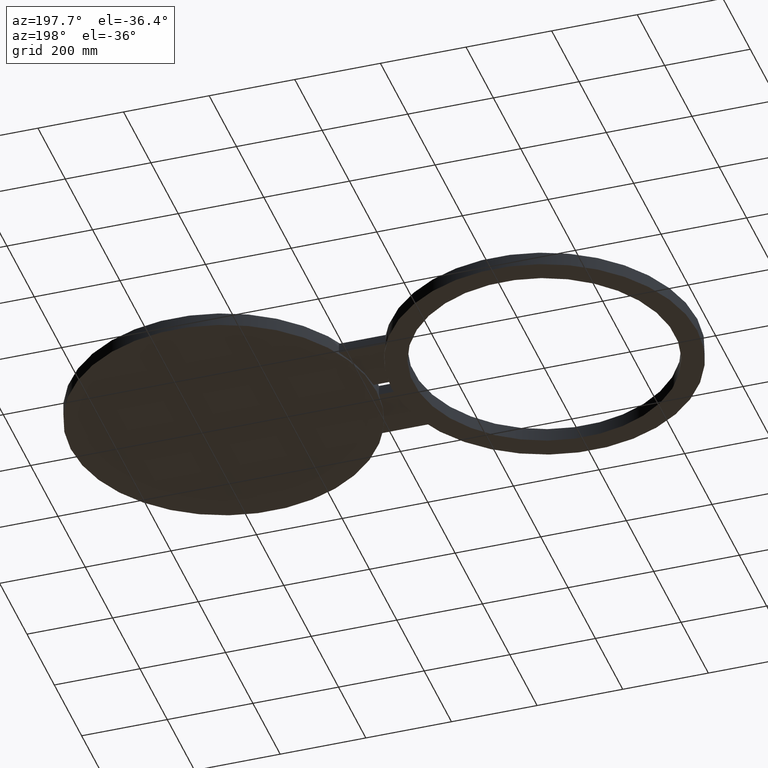
[diagram: clean part render]
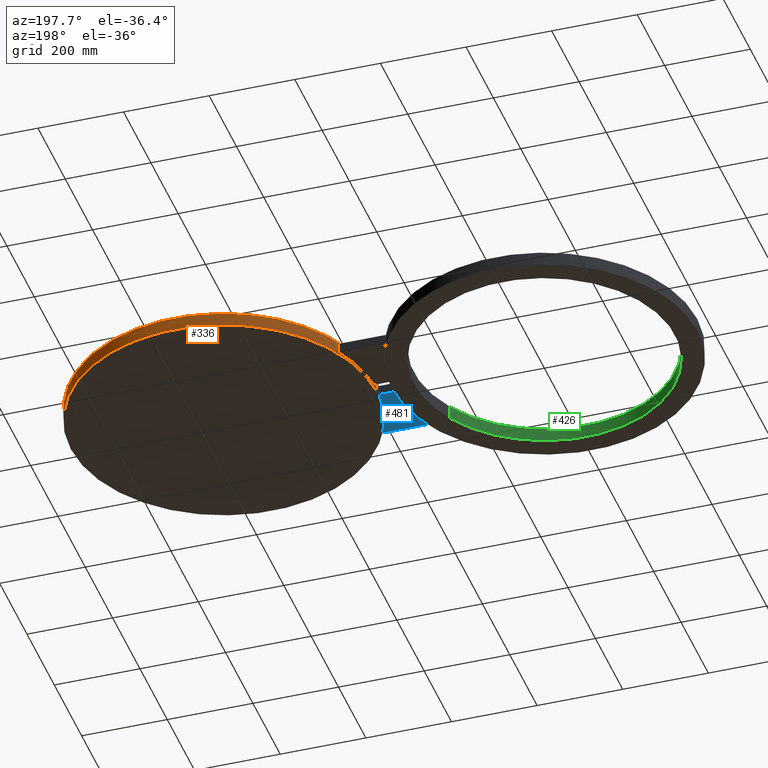
[diagram: same view with three faces highlighted in distinct colors, each labeled with its STEP entity id]
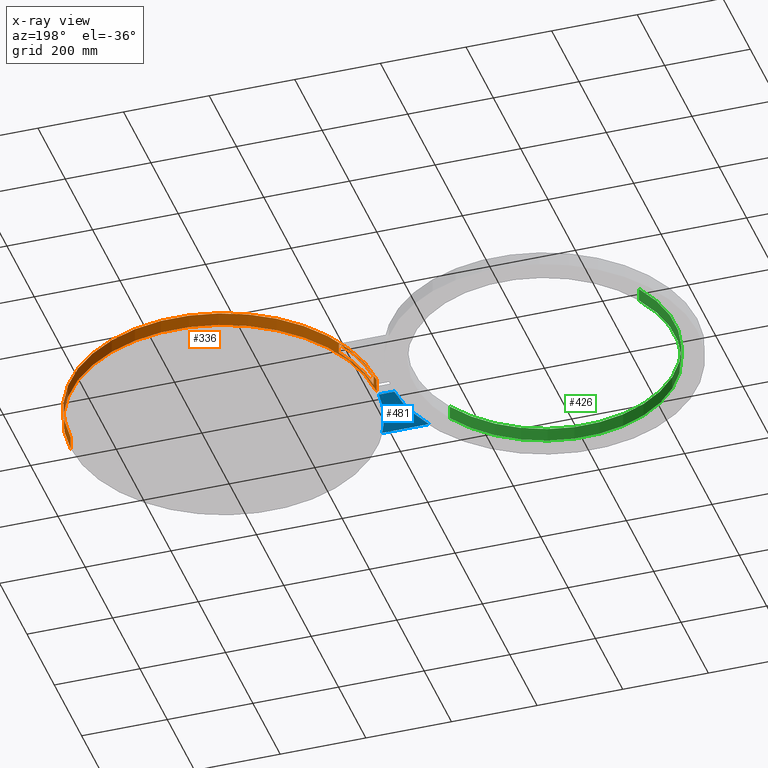
[diagram: x-ray of the same camera — body ghosted, the three highlighted faces saturated]
A machine part, auxiliary view with three faces highlighted in distinct colors.
The next image is the same camera in x-ray (body ghosted, the three faces saturated) — at least one of them is partly hidden behind the body in this view.
Their STEP definitions:

[orange] entity #336 — the highlighted cylindrical surface (partial cylindrical patch) has radius 357.124 mm, axis along (0, 0, 1).
#38=AXIS2_PLACEMENT_3D('Cylinder Axis2P3D',#35,#36,#37) ;
#277=AXIS2_PLACEMENT_3D('Circle Axis2P3D',#275,#276,$) ;
#294=AXIS2_PLACEMENT_3D('Circle Axis2P3D',#292,#293,$) ;
#304=AXIS2_PLACEMENT_3D('Circle Axis2P3D',#302,#303,$) ;
#320=AXIS2_PLACEMENT_3D('Circle Axis2P3D',#318,#319,$) ;
#35=CARTESIAN_POINT('Axis2P3D Location',(29.5000000001,3.6127080575E-015,-1.39870617276E-016)) ;
#40=CARTESIAN_POINT('Line Origine',(15.4400000001,5.33456145711E-015,-1.39870617276E-016)) ;
#44=CARTESIAN_POINT('Vertex',(15.4400000001,5.33456145711E-015,-0.625000000003)) ;
#46=CARTESIAN_POINT('Vertex',(15.4400000001,5.33456145711E-015,0.625000000002)) ;
#53=CARTESIAN_POINT('Vertex',(43.5600000002,1.69001258283E-016,-0.625000000003)) ;
#56=CARTESIAN_POINT('Line Origine',(43.5600000002,1.69001258283E-016,-1.39870617276E-016)) ;
#60=CARTESIAN_POINT('Vertex',(43.5600000002,1.69001258283E-016,0.625000000002)) ;
#221=CARTESIAN_POINT('Line Origine',(16.905513111,6.25000000002,6.99353086378E-017)) ;
#225=CARTESIAN_POINT('Vertex',(16.905513111,6.25000000003,-0.468750000002)) ;
#227=CARTESIAN_POINT('Vertex',(16.905513111,6.25000000003,0.468750000002)) ;
#267=CARTESIAN_POINT('Vertex',(15.4600178063,0.750000000003,-0.468750000002)) ;
#275=CARTESIAN_POINT('Axis2P3D Location',(29.5000000001,0.,-0.468750000002)) ;
#292=CARTESIAN_POINT('Axis2P3D Location',(29.5000000001,3.6127080575E-015,0.625000000002)) ;
#302=CARTESIAN_POINT('Axis2P3D Location',(29.5000000001,3.6127080575E-015,-0.625000000003)) ;
#318=CARTESIAN_POINT('Axis2P3D Location',(29.5000000001,3.6127080575E-015,0.468750000002)) ;
#322=CARTESIAN_POINT('Vertex',(15.4600178063,0.750000000003,0.468750000002)) ;
#325=CARTESIAN_POINT('Line Origine',(15.4600178063,0.750000000003,-1.39870617276E-016)) ;
#36=DIRECTION('Axis2P3D Direction',(0.,0.,0.0393700787402)) ;
#37=DIRECTION('Axis2P3D XDirection',(0.0393700787402,-9.64288818226E-018,0.)) ;
#41=DIRECTION('Vector Direction',(0.,0.,0.0393700787402)) ;
#57=DIRECTION('Vector Direction',(0.,0.,0.0393700787402)) ;
#222=DIRECTION('Vector Direction',(0.,0.,0.0393700787402)) ;
#276=DIRECTION('Axis2P3D Direction',(0.,0.,0.0393700787402)) ;
#293=DIRECTION('Axis2P3D Direction',(0.,0.,0.0393700787402)) ;
#303=DIRECTION('Axis2P3D Direction',(0.,0.,0.0393700787402)) ;
#319=DIRECTION('Axis2P3D Direction',(0.,0.,0.0393700787402)) ;
#326=DIRECTION('Vector Direction',(0.,0.,0.0393700787402)) ;
#42=VECTOR('Line Direction',#41,0.0393700787402) ;
#58=VECTOR('Line Direction',#57,0.0393700787402) ;
#223=VECTOR('Line Direction',#222,0.0393700787402) ;
#327=VECTOR('Line Direction',#326,0.0393700787402) ;
#313=ORIENTED_EDGE('',*,*,#62,.F.) ;
#314=ORIENTED_EDGE('',*,*,#306,.T.) ;
#315=ORIENTED_EDGE('',*,*,#48,.T.) ;
#316=ORIENTED_EDGE('',*,*,#296,.F.) ;
#331=ORIENTED_EDGE('',*,*,#324,.T.) ;
#332=ORIENTED_EDGE('',*,*,#329,.F.) ;
#333=ORIENTED_EDGE('',*,*,#279,.F.) ;
#334=ORIENTED_EDGE('',*,*,#229,.T.) ;
#335=FACE_BOUND('',#330,.T.) ;
#336=ADVANCED_FACE('PartBody',(#317,#335),#39,.T.) ;
#278=CIRCLE('generated circle',#277,14.0600000001) ;
#295=CIRCLE('generated circle',#294,14.0600000001) ;
#305=CIRCLE('generated circle',#304,14.0600000001) ;
#321=CIRCLE('generated circle',#320,14.0600000001) ;
#39=CYLINDRICAL_SURFACE('generated cylinder',#38,14.0600000001) ;
#48=EDGE_CURVE('',#45,#47,#43,.T.) ;
#62=EDGE_CURVE('',#54,#61,#59,.T.) ;
#229=EDGE_CURVE('',#226,#228,#224,.T.) ;
#279=EDGE_CURVE('',#226,#268,#278,.T.) ;
#296=EDGE_CURVE('',#61,#47,#295,.T.) ;
#306=EDGE_CURVE('',#54,#45,#305,.T.) ;
#324=EDGE_CURVE('',#228,#323,#321,.T.) ;
#329=EDGE_CURVE('',#268,#323,#328,.T.) ;
#312=EDGE_LOOP('',(#313,#314,#315,#316)) ;
#330=EDGE_LOOP('',(#331,#332,#333,#334)) ;
#317=FACE_OUTER_BOUND('',#312,.T.) ;
#43=LINE('Line',#40,#42) ;
#59=LINE('Line',#56,#58) ;
#224=LINE('Line',#221,#223) ;
#328=LINE('Line',#325,#327) ;
#45=VERTEX_POINT('',#44) ;
#47=VERTEX_POINT('',#46) ;
#54=VERTEX_POINT('',#53) ;
#61=VERTEX_POINT('',#60) ;
#226=VERTEX_POINT('',#225) ;
#228=VERTEX_POINT('',#227) ;
#268=VERTEX_POINT('',#267) ;
#323=VERTEX_POINT('',#322) ;

[blue] entity #481 — the highlighted planar face has unit normal (0, 0, 1).
#92=AXIS2_PLACEMENT_3D('Circle Axis2P3D',#90,#91,$) ;
#159=AXIS2_PLACEMENT_3D('Circle Axis2P3D',#157,#158,$) ;
#259=AXIS2_PLACEMENT_3D('Plane Axis2P3D',#256,#257,#258) ;
#87=CARTESIAN_POINT('Vertex',(16.905513111,-6.25000000002,-0.468750000002)) ;
#90=CARTESIAN_POINT('Axis2P3D Location',(29.5000000001,3.6127080575E-015,-0.468750000002)) ;
#94=CARTESIAN_POINT('Vertex',(15.4600178063,-0.750000000003,-0.468750000002)) ;
#152=CARTESIAN_POINT('Vertex',(14.0399821938,-0.750000000003,-0.468750000002)) ;
#157=CARTESIAN_POINT('Axis2P3D Location',(0.,0.,-0.468750000002)) ;
#161=CARTESIAN_POINT('Vertex',(12.5944868892,-6.25000000003,-0.468750000002)) ;
#256=CARTESIAN_POINT('Axis2P3D Location',(0.,0.,-0.468750000002)) ;
#453=CARTESIAN_POINT('Line Origine',(14.7500000001,-6.25000000002,-0.468750000002)) ;
#470=CARTESIAN_POINT('Line Origine',(14.7500000001,-0.750000000003,-0.468750000002)) ;
#91=DIRECTION('Axis2P3D Direction',(0.,0.,0.0393700787402)) ;
#158=DIRECTION('Axis2P3D Direction',(0.,0.,0.0393700787402)) ;
#257=DIRECTION('Axis2P3D Direction',(0.,0.,0.0393700787402)) ;
#258=DIRECTION('Axis2P3D XDirection',(0.0393700787402,0.,0.)) ;
#454=DIRECTION('Vector Direction',(-0.0393700787402,0.,0.)) ;
#471=DIRECTION('Vector Direction',(0.0393700787402,0.,0.)) ;
#455=VECTOR('Line Direction',#454,0.0393700787402) ;
#472=VECTOR('Line Direction',#471,0.0393700787402) ;
#476=ORIENTED_EDGE('',*,*,#457,.F.) ;
#477=ORIENTED_EDGE('',*,*,#163,.T.) ;
#478=ORIENTED_EDGE('',*,*,#474,.F.) ;
#479=ORIENTED_EDGE('',*,*,#96,.T.) ;
#481=ADVANCED_FACE('PartBody',(#480),#260,.F.) ;
#93=CIRCLE('generated circle',#92,14.0600000001) ;
#160=CIRCLE('generated circle',#159,14.0600000001) ;
#96=EDGE_CURVE('',#95,#88,#93,.T.) ;
#163=EDGE_CURVE('',#162,#153,#160,.T.) ;
#457=EDGE_CURVE('',#162,#88,#456,.F.) ;
#474=EDGE_CURVE('',#95,#153,#473,.F.) ;
#475=EDGE_LOOP('',(#476,#477,#478,#479)) ;
#480=FACE_OUTER_BOUND('',#475,.T.) ;
#456=LINE('Line',#453,#455) ;
#473=LINE('Line',#470,#472) ;
#260=PLANE('',#259) ;
#88=VERTEX_POINT('',#87) ;
#95=VERTEX_POINT('',#94) ;
#153=VERTEX_POINT('',#152) ;
#162=VERTEX_POINT('',#161) ;

[green] entity #426 — the highlighted cylindrical surface (partial cylindrical patch) has radius 304.8 mm, axis along (0, -0, -1).
#208=AXIS2_PLACEMENT_3D('Circle Axis2P3D',#206,#207,$) ;
#399=AXIS2_PLACEMENT_3D('Cylinder Axis2P3D',#396,#397,#398) ;
#417=AXIS2_PLACEMENT_3D('Circle Axis2P3D',#415,#416,$) ;
#201=CARTESIAN_POINT('Vertex',(10.5309907427,-5.75310646327,-0.625000000003)) ;
#203=CARTESIAN_POINT('Vertex',(-10.5309907427,5.75310646327,-0.625000000003)) ;
#206=CARTESIAN_POINT('Axis2P3D Location',(-5.59482469102E-016,3.35689481461E-015,-0.625000000003)) ;
#396=CARTESIAN_POINT('Axis2P3D Location',(8.52336574023E-017,-6.99353086378E-017,0.621062992128)) ;
#401=CARTESIAN_POINT('Line Origine',(10.5309907427,-5.75310646327,-1.39870617276E-016)) ;
#405=CARTESIAN_POINT('Vertex',(10.5309907427,-5.75310646327,0.625000000002)) ;
#408=CARTESIAN_POINT('Line Origine',(-10.5309907427,5.75310646327,-1.39870617276E-016)) ;
#412=CARTESIAN_POINT('Vertex',(-10.5309907427,5.75310646327,0.625000000002)) ;
#415=CARTESIAN_POINT('Axis2P3D Location',(8.52336574023E-017,-6.99353086378E-017,0.625000000002)) ;
#207=DIRECTION('Axis2P3D Direction',(0.,0.,0.0393700787402)) ;
#397=DIRECTION('Axis2P3D Direction',(0.,-0.,-0.0393700787402)) ;
#398=DIRECTION('Axis2P3D XDirection',(-0.0345504945626,0.0188750212049,0.)) ;
#402=DIRECTION('Vector Direction',(0.,0.,-0.0393700787402)) ;
#409=DIRECTION('Vector Direction',(0.,0.,-0.0393700787402)) ;
#416=DIRECTION('Axis2P3D Direction',(0.,-0.,-0.0393700787402)) ;
#403=VECTOR('Line Direction',#402,0.0393700787402) ;
#410=VECTOR('Line Direction',#409,0.0393700787402) ;
#421=ORIENTED_EDGE('',*,*,#407,.F.) ;
#422=ORIENTED_EDGE('',*,*,#210,.F.) ;
#423=ORIENTED_EDGE('',*,*,#414,.T.) ;
#424=ORIENTED_EDGE('',*,*,#419,.T.) ;
#426=ADVANCED_FACE('PartBody',(#425),#400,.F.) ;
#209=CIRCLE('generated circle',#208,12.) ;
#418=CIRCLE('generated circle',#417,12.) ;
#400=CYLINDRICAL_SURFACE('generated cylinder',#399,12.) ;
#210=EDGE_CURVE('',#204,#202,#209,.T.) ;
#407=EDGE_CURVE('',#202,#406,#404,.F.) ;
#414=EDGE_CURVE('',#204,#413,#411,.F.) ;
#419=EDGE_CURVE('',#413,#406,#418,.F.) ;
#420=EDGE_LOOP('',(#421,#422,#423,#424)) ;
#425=FACE_OUTER_BOUND('',#420,.T.) ;
#404=LINE('Line',#401,#403) ;
#411=LINE('Line',#408,#410) ;
#202=VERTEX_POINT('',#201) ;
#204=VERTEX_POINT('',#203) ;
#406=VERTEX_POINT('',#405) ;
#413=VERTEX_POINT('',#412) ;